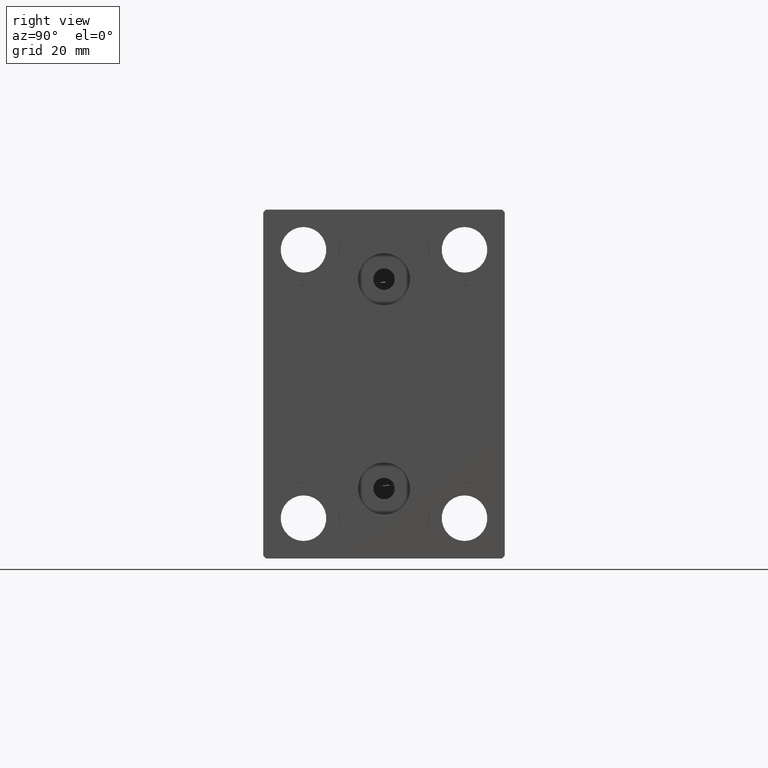
[diagram: clean part render]
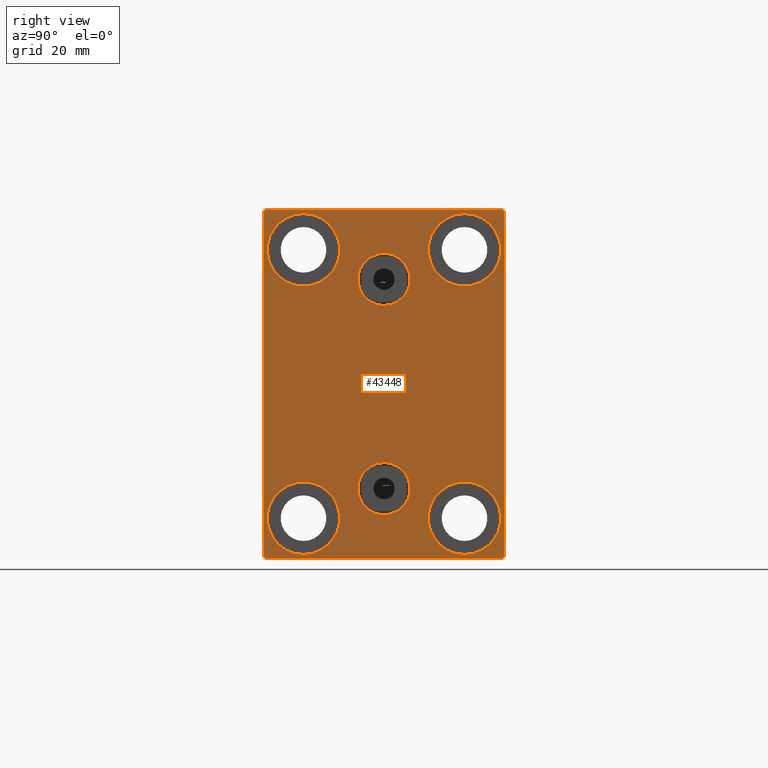
[diagram: same view with one face highlighted and labeled with its STEP entity id]
A machine part, right view. The second image highlights one B-rep face of the part: STEP entity #43448.
In plain terms, the highlighted planar face has unit normal (1, 0, 0).
Its self-contained STEP definition (entity closure, byte-faithful):
#203 = CIRCLE ( 'NONE', #1626, 6.749999999999999112 ) ;
#608 = EDGE_LOOP ( 'NONE', ( #13796, #35860 ) ) ;
#1412 = CARTESIAN_POINT ( 'NONE',  ( 100.0000000000000000, -14.99999999999999645, 18.25000000000000355 ) ) ;
#1453 = DIRECTION ( 'NONE',  ( 0.000000000000000000, 0.000000000000000000, -1.000000000000000000 ) ) ;
#1478 = VERTEX_POINT ( 'NONE', #28508 ) ;
#1488 = EDGE_LOOP ( 'NONE', ( #13374, #17005 ) ) ;
#1626 = AXIS2_PLACEMENT_3D ( 'NONE', #3965, #30332, #33859 ) ;
#1779 = DIRECTION ( 'NONE',  ( 1.000000000000000000, 0.000000000000000000, -0.000000000000000000 ) ) ;
#1865 = VERTEX_POINT ( 'NONE', #42846 ) ;
#2068 = CIRCLE ( 'NONE', #4919, 4.859999999999999432 ) ;
#2161 = AXIS2_PLACEMENT_3D ( 'NONE', #36406, #33290, #12695 ) ;
#2191 = AXIS2_PLACEMENT_3D ( 'NONE', #37584, #14541, #37146 ) ;
#2380 = DIRECTION ( 'NONE',  ( 0.000000000000000000, 0.000000000000000000, -1.000000000000000000 ) ) ;
#2431 = CIRCLE ( 'NONE', #32146, 4.859999999999999432 ) ;
#2662 = VERTEX_POINT ( 'NONE', #17343 ) ;
#2902 = DIRECTION ( 'NONE',  ( 0.000000000000000000, 0.000000000000000000, 1.000000000000000000 ) ) ;
#3588 = CARTESIAN_POINT ( 'NONE',  ( 100.0000000000000000, -22.50000000000000711, -32.50000000000000711 ) ) ;
#3883 = DIRECTION ( 'NONE',  ( 0.000000000000000000, 0.000000000000000000, 1.000000000000000000 ) ) ;
#3965 = CARTESIAN_POINT ( 'NONE',  ( 100.0000000000000000, 15.00000000000000355, 25.00000000000000000 ) ) ;
#4152 = DIRECTION ( 'NONE',  ( 0.000000000000000000, 0.000000000000000000, 1.000000000000000000 ) ) ;
#4228 = LINE ( 'NONE', #17305, #10404 ) ;
#4679 = CARTESIAN_POINT ( 'NONE',  ( 100.0000000000000000, 22.50000000000000000, -32.00000000000000711 ) ) ;
#4919 = AXIS2_PLACEMENT_3D ( 'NONE', #32971, #39834, #3883 ) ;
#4937 = CARTESIAN_POINT ( 'NONE',  ( 100.0000000000000000, -22.00000000000002132, -32.50000000000000711 ) ) ;
#5329 = CARTESIAN_POINT ( 'NONE',  ( 100.0000000000000000, 2.388061258337338150E-15, -19.49999999999999645 ) ) ;
#5451 = AXIS2_PLACEMENT_3D ( 'NONE', #29891, #43179, #19489 ) ;
#5505 = DIRECTION ( 'NONE',  ( 1.000000000000000000, 0.000000000000000000, 0.000000000000000000 ) ) ;
#5786 = CIRCLE ( 'NONE', #12851, 4.859999999999999432 ) ;
#5879 = CARTESIAN_POINT ( 'NONE',  ( 100.0000000000000000, 15.00000000000000355, 18.25000000000000355 ) ) ;
#5902 = VERTEX_POINT ( 'NONE', #13471 ) ;
#5935 = EDGE_CURVE ( 'NONE', #1478, #1865, #5786, .T. ) ;
#6540 = CARTESIAN_POINT ( 'NONE',  ( 100.0000000000000000, 22.50000000000000000, -32.50000000000000711 ) ) ;
#6973 = VERTEX_POINT ( 'NONE', #34264 ) ;
#7352 = AXIS2_PLACEMENT_3D ( 'NONE', #39471, #8922, #2902 ) ;
#7422 = CARTESIAN_POINT ( 'NONE',  ( 100.0000000000000000, 2.983239602722951428E-15, -14.63999999999999702 ) ) ;
#7534 = ORIENTED_EDGE ( 'NONE', *, *, #23348, .T. ) ;
#8272 = CIRCLE ( 'NONE', #31629, 4.859999999999999432 ) ;
#8575 = EDGE_LOOP ( 'NONE', ( #31339, #18313 ) ) ;
#8712 = CARTESIAN_POINT ( 'NONE',  ( 100.0000000000000000, 21.99999999999998579, -32.50000000000000711 ) ) ;
#8799 = EDGE_CURVE ( 'NONE', #10245, #19066, #18764, .T. ) ;
#8828 = ORIENTED_EDGE ( 'NONE', *, *, #42946, .T. ) ;
#8922 = DIRECTION ( 'NONE',  ( -1.000000000000000000, -0.000000000000000000, -0.000000000000000000 ) ) ;
#10001 = AXIS2_PLACEMENT_3D ( 'NONE', #34500, #31834, #4152 ) ;
#10023 = ORIENTED_EDGE ( 'NONE', *, *, #14788, .T. ) ;
#10044 = EDGE_CURVE ( 'NONE', #43494, #24421, #19651, .T. ) ;
#10245 = VERTEX_POINT ( 'NONE', #22713 ) ;
#10404 = VECTOR ( 'NONE', #14408, 1000.000000000000114 ) ;
#11583 = CIRCLE ( 'NONE', #7352, 6.749999999999999112 ) ;
#11675 = DIRECTION ( 'NONE',  ( -1.000000000000000000, -0.000000000000000000, -0.000000000000000000 ) ) ;
#11956 = FACE_OUTER_BOUND ( 'NONE', #39565, .T. ) ;
#12320 = ORIENTED_EDGE ( 'NONE', *, *, #43400, .F. ) ;
#12556 = DIRECTION ( 'NONE',  ( -0.000000000000000000, -0.7071067811865425767, 0.7071067811865525687 ) ) ;
#12608 = FACE_BOUND ( 'NONE', #38178, .T. ) ;
#12695 = DIRECTION ( 'NONE',  ( 0.000000000000000000, 0.000000000000000000, 1.000000000000000000 ) ) ;
#12851 = AXIS2_PLACEMENT_3D ( 'NONE', #30325, #17857, #1453 ) ;
#13188 = EDGE_CURVE ( 'NONE', #34984, #23388, #2068, .T. ) ;
#13374 = ORIENTED_EDGE ( 'NONE', *, *, #16340, .T. ) ;
#13390 = DIRECTION ( 'NONE',  ( 0.000000000000000000, -1.067522139062650425E-16, 1.000000000000000000 ) ) ;
#13471 = CARTESIAN_POINT ( 'NONE',  ( 100.0000000000000000, 14.99999999999999645, -18.25000000000000355 ) ) ;
#13796 = ORIENTED_EDGE ( 'NONE', *, *, #5935, .F. ) ;
#14260 = CIRCLE ( 'NONE', #10001, 6.749999999999999112 ) ;
#14268 = ORIENTED_EDGE ( 'NONE', *, *, #8799, .T. ) ;
#14408 = DIRECTION ( 'NONE',  ( 0.000000000000000000, -0.7071067811865474617, -0.7071067811865474617 ) ) ;
#14541 = DIRECTION ( 'NONE',  ( -1.000000000000000000, -0.000000000000000000, -0.000000000000000000 ) ) ;
#14788 = EDGE_CURVE ( 'NONE', #43064, #31187, #24200, .T. ) ;
#14867 = AXIS2_PLACEMENT_3D ( 'NONE', #21441, #11675, #27864 ) ;
#15283 = FACE_BOUND ( 'NONE', #1488, .T. ) ;
#15692 = EDGE_CURVE ( 'NONE', #22668, #6973, #32555, .T. ) ;
#15894 = AXIS2_PLACEMENT_3D ( 'NONE', #26080, #35839, #16313 ) ;
#16180 = CARTESIAN_POINT ( 'NONE',  ( 100.0000000000000000, -22.50000000000000711, 32.49999999999999289 ) ) ;
#16313 = DIRECTION ( 'NONE',  ( 0.000000000000000000, 0.000000000000000000, 1.000000000000000000 ) ) ;
#16340 = EDGE_CURVE ( 'NONE', #18805, #2662, #40360, .T. ) ;
#16364 = PLANE ( 'NONE',  #5451 ) ;
#16493 = ORIENTED_EDGE ( 'NONE', *, *, #43355, .T. ) ;
#16934 = EDGE_CURVE ( 'NONE', #6973, #22668, #18463, .T. ) ;
#17005 = ORIENTED_EDGE ( 'NONE', *, *, #28303, .T. ) ;
#17158 = EDGE_LOOP ( 'NONE', ( #34866, #12320 ) ) ;
#17305 = CARTESIAN_POINT ( 'NONE',  ( 100.0000000000000000, -27.25000000000000000, 27.25000000000000000 ) ) ;
#17307 = CARTESIAN_POINT ( 'NONE',  ( 100.0000000000000000, -15.00000000000000355, -18.25000000000000355 ) ) ;
#17343 = CARTESIAN_POINT ( 'NONE',  ( 100.0000000000000000, 15.00000000000000355, 31.75000000000000000 ) ) ;
#17790 = VECTOR ( 'NONE', #13390, 1000.000000000000000 ) ;
#17857 = DIRECTION ( 'NONE',  ( 1.000000000000000000, 0.000000000000000000, 0.000000000000000000 ) ) ;
#17908 = VECTOR ( 'NONE', #32234, 1000.000000000000000 ) ;
#18313 = ORIENTED_EDGE ( 'NONE', *, *, #38545, .T. ) ;
#18459 = EDGE_CURVE ( 'NONE', #31187, #40424, #40025, .T. ) ;
#18463 = CIRCLE ( 'NONE', #2191, 6.749999999999999112 ) ;
#18764 = LINE ( 'NONE', #16180, #17908 ) ;
#18805 = VERTEX_POINT ( 'NONE', #5879 ) ;
#19066 = VERTEX_POINT ( 'NONE', #27999 ) ;
#19230 = DIRECTION ( 'NONE',  ( -0.000000000000000000, 0.7071067811865474617, 0.7071067811865474617 ) ) ;
#19489 = DIRECTION ( 'NONE',  ( 0.000000000000000000, 0.000000000000000000, -1.000000000000000000 ) ) ;
#19610 = VERTEX_POINT ( 'NONE', #39963 ) ;
#19651 = LINE ( 'NONE', #42917, #43374 ) ;
#19694 = EDGE_CURVE ( 'NONE', #5902, #24866, #41753, .T. ) ;
#20130 = ORIENTED_EDGE ( 'NONE', *, *, #15692, .T. ) ;
#20865 = CARTESIAN_POINT ( 'NONE',  ( 100.0000000000000000, 14.99999999999999645, -25.00000000000000000 ) ) ;
#21441 = CARTESIAN_POINT ( 'NONE',  ( 100.0000000000000000, 15.00000000000000355, 25.00000000000000000 ) ) ;
#21587 = CIRCLE ( 'NONE', #15894, 6.749999999999999112 ) ;
#22668 = VERTEX_POINT ( 'NONE', #1412 ) ;
#22713 = CARTESIAN_POINT ( 'NONE',  ( 100.0000000000000000, -22.50000000000000711, 31.99999999999999289 ) ) ;
#22730 = VECTOR ( 'NONE', #19230, 1000.000000000000114 ) ;
#22801 = EDGE_LOOP ( 'NONE', ( #20130, #30670 ) ) ;
#22984 = CARTESIAN_POINT ( 'NONE',  ( 100.0000000000000000, 27.25000000000000355, -27.25000000000000355 ) ) ;
#23348 = EDGE_CURVE ( 'NONE', #40424, #43494, #39990, .T. ) ;
#23388 = VERTEX_POINT ( 'NONE', #7422 ) ;
#24200 = LINE ( 'NONE', #3588, #32520 ) ;
#24360 = EDGE_CURVE ( 'NONE', #19610, #37101, #14260, .T. ) ;
#24421 = VERTEX_POINT ( 'NONE', #43327 ) ;
#24866 = VERTEX_POINT ( 'NONE', #38892 ) ;
#25041 = CARTESIAN_POINT ( 'NONE',  ( 100.0000000000000000, -21.99999999999999289, 32.49999999999999289 ) ) ;
#25972 = VECTOR ( 'NONE', #31744, 1000.000000000000000 ) ;
#26080 = CARTESIAN_POINT ( 'NONE',  ( 100.0000000000000000, -15.00000000000000355, -25.00000000000000000 ) ) ;
#26210 = ORIENTED_EDGE ( 'NONE', *, *, #19694, .T. ) ;
#26595 = ORIENTED_EDGE ( 'NONE', *, *, #18459, .T. ) ;
#26986 = ORIENTED_EDGE ( 'NONE', *, *, #32160, .T. ) ;
#27864 = DIRECTION ( 'NONE',  ( 0.000000000000000000, 0.000000000000000000, 1.000000000000000000 ) ) ;
#27987 = LINE ( 'NONE', #37732, #25972 ) ;
#27999 = CARTESIAN_POINT ( 'NONE',  ( 100.0000000000000000, -22.50000000000000711, -32.00000000000000711 ) ) ;
#28303 = EDGE_CURVE ( 'NONE', #2662, #18805, #203, .T. ) ;
#28508 = CARTESIAN_POINT ( 'NONE',  ( 100.0000000000000000, -3.571693674697836683E-15, 14.64000000000000412 ) ) ;
#28592 = FACE_BOUND ( 'NONE', #22801, .T. ) ;
#29242 = FACE_BOUND ( 'NONE', #608, .T. ) ;
#29891 = CARTESIAN_POINT ( 'NONE',  ( 100.0000000000000000, 0.000000000000000000, 0.000000000000000000 ) ) ;
#30136 = EDGE_CURVE ( 'NONE', #24866, #5902, #11583, .T. ) ;
#30325 = CARTESIAN_POINT ( 'NONE',  ( 100.0000000000000000, -3.571693674697836683E-15, 19.50000000000000355 ) ) ;
#30332 = DIRECTION ( 'NONE',  ( -1.000000000000000000, -0.000000000000000000, -0.000000000000000000 ) ) ;
#30670 = ORIENTED_EDGE ( 'NONE', *, *, #16934, .T. ) ;
#31187 = VERTEX_POINT ( 'NONE', #8712 ) ;
#31339 = ORIENTED_EDGE ( 'NONE', *, *, #24360, .T. ) ;
#31483 = DIRECTION ( 'NONE',  ( -1.000000000000000000, -0.000000000000000000, -0.000000000000000000 ) ) ;
#31629 = AXIS2_PLACEMENT_3D ( 'NONE', #5329, #1779, #35666 ) ;
#31744 = DIRECTION ( 'NONE',  ( 0.000000000000000000, -1.000000000000000000, -1.541976423090495387E-16 ) ) ;
#31834 = DIRECTION ( 'NONE',  ( -1.000000000000000000, -0.000000000000000000, -0.000000000000000000 ) ) ;
#32045 = EDGE_CURVE ( 'NONE', #1865, #1478, #2431, .T. ) ;
#32146 = AXIS2_PLACEMENT_3D ( 'NONE', #32950, #5505, #2380 ) ;
#32160 = EDGE_CURVE ( 'NONE', #19066, #43064, #36272, .T. ) ;
#32234 = DIRECTION ( 'NONE',  ( 0.000000000000000000, 0.000000000000000000, -1.000000000000000000 ) ) ;
#32520 = VECTOR ( 'NONE', #37262, 1000.000000000000000 ) ;
#32555 = CIRCLE ( 'NONE', #2161, 6.749999999999999112 ) ;
#32735 = DIRECTION ( 'NONE',  ( -0.000000000000000000, 0.7071067811865378028, -0.7071067811865573427 ) ) ;
#32950 = CARTESIAN_POINT ( 'NONE',  ( 100.0000000000000000, -3.571693674697836683E-15, 19.50000000000000355 ) ) ;
#32971 = CARTESIAN_POINT ( 'NONE',  ( 100.0000000000000000, 2.388061258337338150E-15, -19.49999999999999645 ) ) ;
#33204 = CARTESIAN_POINT ( 'NONE',  ( 100.0000000000000000, 22.49999999999999289, 31.99999999999999289 ) ) ;
#33290 = DIRECTION ( 'NONE',  ( -1.000000000000000000, -0.000000000000000000, -0.000000000000000000 ) ) ;
#33859 = DIRECTION ( 'NONE',  ( 0.000000000000000000, 0.000000000000000000, 1.000000000000000000 ) ) ;
#34264 = CARTESIAN_POINT ( 'NONE',  ( 100.0000000000000000, -14.99999999999999645, 31.75000000000000000 ) ) ;
#34500 = CARTESIAN_POINT ( 'NONE',  ( 100.0000000000000000, -15.00000000000000355, -25.00000000000000000 ) ) ;
#34866 = ORIENTED_EDGE ( 'NONE', *, *, #13188, .F. ) ;
#34984 = VERTEX_POINT ( 'NONE', #37325 ) ;
#34985 = ORIENTED_EDGE ( 'NONE', *, *, #30136, .T. ) ;
#35023 = DIRECTION ( 'NONE',  ( 0.000000000000000000, 0.000000000000000000, 1.000000000000000000 ) ) ;
#35392 = AXIS2_PLACEMENT_3D ( 'NONE', #20865, #31483, #35023 ) ;
#35666 = DIRECTION ( 'NONE',  ( 0.000000000000000000, 0.000000000000000000, 1.000000000000000000 ) ) ;
#35839 = DIRECTION ( 'NONE',  ( -1.000000000000000000, -0.000000000000000000, -0.000000000000000000 ) ) ;
#35860 = ORIENTED_EDGE ( 'NONE', *, *, #32045, .F. ) ;
#36272 = LINE ( 'NONE', #39377, #39218 ) ;
#36406 = CARTESIAN_POINT ( 'NONE',  ( 100.0000000000000000, -14.99999999999999645, 25.00000000000000000 ) ) ;
#37101 = VERTEX_POINT ( 'NONE', #17307 ) ;
#37146 = DIRECTION ( 'NONE',  ( 0.000000000000000000, 0.000000000000000000, 1.000000000000000000 ) ) ;
#37262 = DIRECTION ( 'NONE',  ( 0.000000000000000000, 1.000000000000000000, 0.000000000000000000 ) ) ;
#37325 = CARTESIAN_POINT ( 'NONE',  ( 100.0000000000000000, 2.388061258337338150E-15, -24.35999999999999588 ) ) ;
#37584 = CARTESIAN_POINT ( 'NONE',  ( 100.0000000000000000, -14.99999999999999645, 25.00000000000000000 ) ) ;
#37732 = CARTESIAN_POINT ( 'NONE',  ( 100.0000000000000000, 22.49999999999999289, 32.50000000000000000 ) ) ;
#38178 = EDGE_LOOP ( 'NONE', ( #34985, #26210 ) ) ;
#38545 = EDGE_CURVE ( 'NONE', #37101, #19610, #21587, .T. ) ;
#38892 = CARTESIAN_POINT ( 'NONE',  ( 100.0000000000000000, 14.99999999999999645, -31.75000000000000000 ) ) ;
#39218 = VECTOR ( 'NONE', #32735, 1000.000000000000000 ) ;
#39377 = CARTESIAN_POINT ( 'NONE',  ( 100.0000000000000000, -27.25000000000032330, -27.24999999999957012 ) ) ;
#39471 = CARTESIAN_POINT ( 'NONE',  ( 100.0000000000000000, 14.99999999999999645, -25.00000000000000000 ) ) ;
#39565 = EDGE_LOOP ( 'NONE', ( #8828, #16493, #14268, #26986, #10023, #26595, #7534, #40778 ) ) ;
#39834 = DIRECTION ( 'NONE',  ( 1.000000000000000000, 0.000000000000000000, -0.000000000000000000 ) ) ;
#39963 = CARTESIAN_POINT ( 'NONE',  ( 100.0000000000000000, -15.00000000000000355, -31.75000000000000000 ) ) ;
#39990 = LINE ( 'NONE', #6540, #17790 ) ;
#40025 = LINE ( 'NONE', #22984, #22730 ) ;
#40360 = CIRCLE ( 'NONE', #14867, 6.749999999999999112 ) ;
#40424 = VERTEX_POINT ( 'NONE', #4679 ) ;
#40778 = ORIENTED_EDGE ( 'NONE', *, *, #10044, .T. ) ;
#41481 = VERTEX_POINT ( 'NONE', #25041 ) ;
#41753 = CIRCLE ( 'NONE', #35392, 6.749999999999999112 ) ;
#42316 = FACE_BOUND ( 'NONE', #8575, .T. ) ;
#42751 = FACE_BOUND ( 'NONE', #17158, .T. ) ;
#42846 = CARTESIAN_POINT ( 'NONE',  ( 100.0000000000000000, -2.976515330312223406E-15, 24.36000000000000298 ) ) ;
#42917 = CARTESIAN_POINT ( 'NONE',  ( 100.0000000000000000, 27.25000000000014921, 27.24999999999976907 ) ) ;
#42946 = EDGE_CURVE ( 'NONE', #24421, #41481, #27987, .T. ) ;
#43064 = VERTEX_POINT ( 'NONE', #4937 ) ;
#43179 = DIRECTION ( 'NONE',  ( 1.000000000000000000, 0.000000000000000000, 0.000000000000000000 ) ) ;
#43327 = CARTESIAN_POINT ( 'NONE',  ( 100.0000000000000000, 21.99999999999999289, 32.50000000000000000 ) ) ;
#43355 = EDGE_CURVE ( 'NONE', #41481, #10245, #4228, .T. ) ;
#43374 = VECTOR ( 'NONE', #12556, 999.9999999999998863 ) ;
#43400 = EDGE_CURVE ( 'NONE', #23388, #34984, #8272, .T. ) ;
#43448 = ADVANCED_FACE ( 'NONE', ( #29242, #42751, #12608, #28592, #15283, #42316, #11956 ), #16364, .T. ) ;
#43494 = VERTEX_POINT ( 'NONE', #33204 ) ;